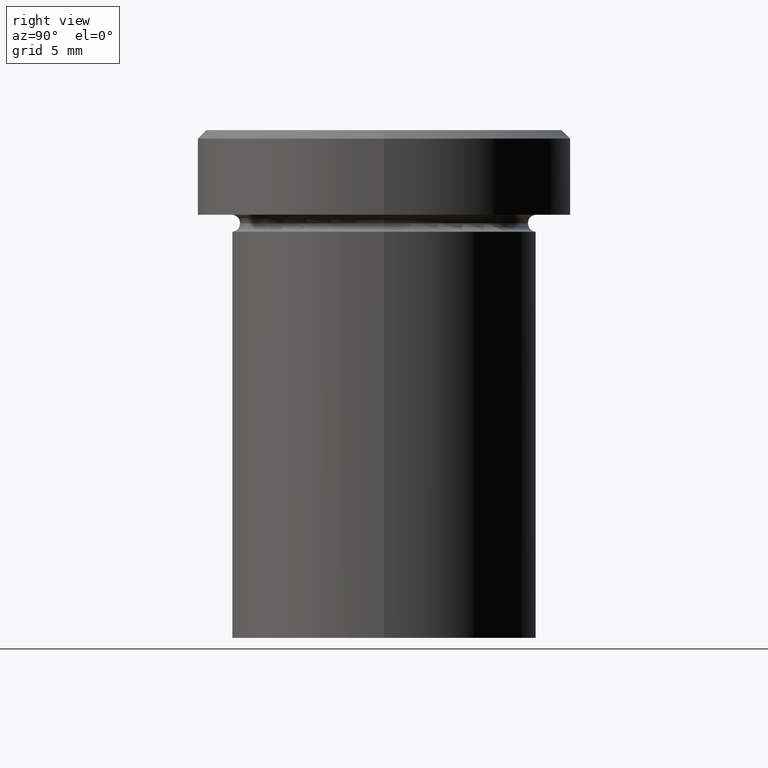
[diagram: clean part render]
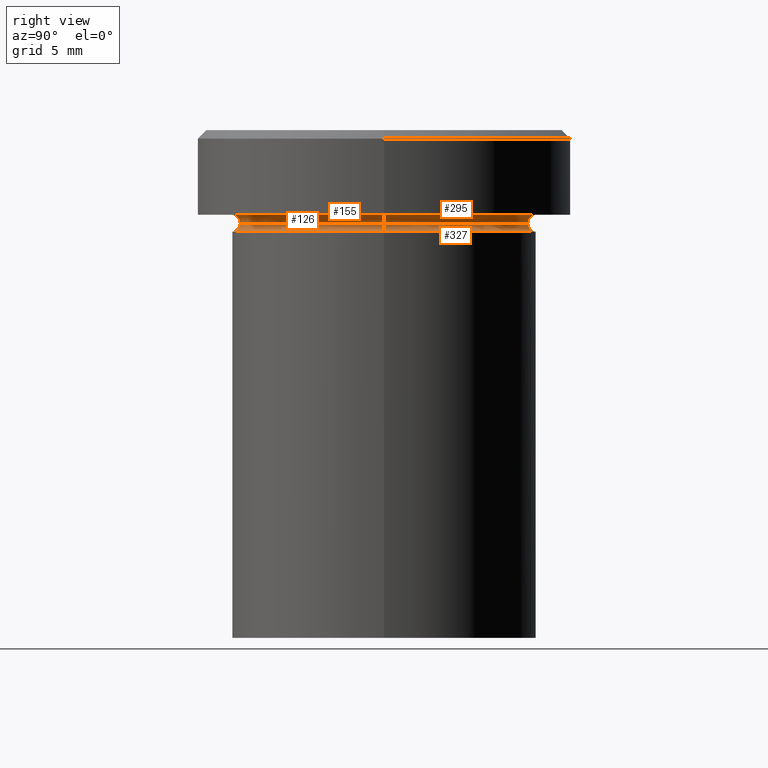
[diagram: same view with one multi-face feature highlighted, each face labeled with its STEP entity id]
A machine part, right view. The highlighted faces form ONE feature: a constant-radius fillet chain: 4 tangent blend faces with common blend radius 0.5 mm. The faces share edges in the B-rep.
Their STEP definitions:
[1] entity #155 (Torus):
#23 = DIRECTION ( 'NONE',  ( 1.000000000000000000, 0.000000000000000000, 0.000000000000000000 ) ) ;
#41 = ORIENTED_EDGE ( 'NONE', *, *, #190, .F. ) ;
#48 = CARTESIAN_POINT ( 'NONE',  ( -8.499999999999998224, 1.071565949253933927E-15, -5.500000000000000000 ) ) ;
#52 = DIRECTION ( 'NONE',  ( 0.000000000000000000, -1.000000000000000000, 0.000000000000000000 ) ) ;
#55 = DIRECTION ( 'NONE',  ( 1.000000000000000000, 0.000000000000000000, 0.000000000000000000 ) ) ;
#56 = DIRECTION ( 'NONE',  ( 0.000000000000000000, 0.000000000000000000, -1.000000000000000000 ) ) ;
#57 = CIRCLE ( 'NONE', #359, 0.5000000000000004441 ) ;
#63 = DIRECTION ( 'NONE',  ( -0.000000000000000000, -0.000000000000000000, 1.000000000000000000 ) ) ;
#64 = CIRCLE ( 'NONE', #401, 9.000000000000000000 ) ;
#94 = CARTESIAN_POINT ( 'NONE',  ( 0.000000000000000000, 0.000000000000000000, -6.000000000000000000 ) ) ;
#96 = DIRECTION ( 'NONE',  ( -0.000000000000000000, -0.000000000000000000, 1.000000000000000000 ) ) ;
#142 = CIRCLE ( 'NONE', #324, 8.499999999999998224 ) ;
#147 = EDGE_CURVE ( 'NONE', #303, #299, #64, .T. ) ;
#152 = CIRCLE ( 'NONE', #204, 0.5000000000000004441 ) ;
#155 = ADVANCED_FACE ( 'NONE', ( #300 ), #364, .F. ) ;
#156 = DIRECTION ( 'NONE',  ( 1.000000000000000000, 0.000000000000000000, 0.000000000000000000 ) ) ;
#161 = DIRECTION ( 'NONE',  ( 1.224646799147353207E-16, 1.000000000000000000, 0.000000000000000000 ) ) ;
#185 = CARTESIAN_POINT ( 'NONE',  ( 9.000000000000000000, 0.000000000000000000, -6.000000000000000000 ) ) ;
#189 = AXIS2_PLACEMENT_3D ( 'NONE', #244, #63, #156 ) ;
#190 = EDGE_CURVE ( 'NONE', #208, #253, #142, .T. ) ;
#204 = AXIS2_PLACEMENT_3D ( 'NONE', #273, #161, #314 ) ;
#207 = EDGE_CURVE ( 'NONE', #253, #299, #57, .T. ) ;
#208 = VERTEX_POINT ( 'NONE', #48 ) ;
#220 = EDGE_LOOP ( 'NONE', ( #41, #337, #227, #240 ) ) ;
#227 = ORIENTED_EDGE ( 'NONE', *, *, #147, .T. ) ;
#228 = CARTESIAN_POINT ( 'NONE',  ( 0.000000000000000000, 0.000000000000000000, -5.500000000000000000 ) ) ;
#240 = ORIENTED_EDGE ( 'NONE', *, *, #207, .F. ) ;
#244 = CARTESIAN_POINT ( 'NONE',  ( 0.000000000000000000, 0.000000000000000000, -5.500000000000000000 ) ) ;
#253 = VERTEX_POINT ( 'NONE', #277 ) ;
#267 = DIRECTION ( 'NONE',  ( -0.000000000000000000, -0.000000000000000000, 1.000000000000000000 ) ) ;
#273 = CARTESIAN_POINT ( 'NONE',  ( -9.000000000000000000, 1.102182119232617714E-15, -5.500000000000000000 ) ) ;
#277 = CARTESIAN_POINT ( 'NONE',  ( 8.499999999999998224, 0.000000000000000000, -5.500000000000000000 ) ) ;
#278 = CARTESIAN_POINT ( 'NONE',  ( -9.000000000000000000, 1.102182119232617714E-15, -6.000000000000000000 ) ) ;
#299 = VERTEX_POINT ( 'NONE', #185 ) ;
#300 = FACE_OUTER_BOUND ( 'NONE', #220, .T. ) ;
#303 = VERTEX_POINT ( 'NONE', #278 ) ;
#314 = DIRECTION ( 'NONE',  ( -1.000000000000000000, 1.224646799147353454E-16, 0.000000000000000000 ) ) ;
#324 = AXIS2_PLACEMENT_3D ( 'NONE', #228, #96, #55 ) ;
#331 = CARTESIAN_POINT ( 'NONE',  ( 9.000000000000000000, 0.000000000000000000, -5.500000000000000000 ) ) ;
#337 = ORIENTED_EDGE ( 'NONE', *, *, #398, .T. ) ;
#359 = AXIS2_PLACEMENT_3D ( 'NONE', #331, #52, #56 ) ;
#364 = TOROIDAL_SURFACE ( 'NONE', #189, 9.000000000000000000, 0.5000000000000000000 ) ;
#398 = EDGE_CURVE ( 'NONE', #208, #303, #152, .T. ) ;
#401 = AXIS2_PLACEMENT_3D ( 'NONE', #94, #267, #23 ) ;
[2] entity #327 (Torus):
#7 = TOROIDAL_SURFACE ( 'NONE', #42, 9.000000000000000000, 0.5000000000000000000 ) ;
#13 = DIRECTION ( 'NONE',  ( -0.000000000000000000, -0.000000000000000000, 1.000000000000000000 ) ) ;
#33 = DIRECTION ( 'NONE',  ( -0.000000000000000000, -0.000000000000000000, 1.000000000000000000 ) ) ;
#42 = AXIS2_PLACEMENT_3D ( 'NONE', #83, #13, #249 ) ;
#45 = FACE_OUTER_BOUND ( 'NONE', #369, .T. ) ;
#48 = CARTESIAN_POINT ( 'NONE',  ( -8.499999999999998224, 1.071565949253933927E-15, -5.500000000000000000 ) ) ;
#52 = DIRECTION ( 'NONE',  ( 0.000000000000000000, -1.000000000000000000, 0.000000000000000000 ) ) ;
#56 = DIRECTION ( 'NONE',  ( 0.000000000000000000, 0.000000000000000000, -1.000000000000000000 ) ) ;
#57 = CIRCLE ( 'NONE', #359, 0.5000000000000004441 ) ;
#65 = ORIENTED_EDGE ( 'NONE', *, *, #259, .T. ) ;
#67 = EDGE_CURVE ( 'NONE', #253, #208, #110, .T. ) ;
#83 = CARTESIAN_POINT ( 'NONE',  ( 0.000000000000000000, 0.000000000000000000, -5.500000000000000000 ) ) ;
#100 = DIRECTION ( 'NONE',  ( 1.000000000000000000, 0.000000000000000000, 0.000000000000000000 ) ) ;
#110 = CIRCLE ( 'NONE', #199, 8.499999999999998224 ) ;
#149 = DIRECTION ( 'NONE',  ( 1.000000000000000000, 0.000000000000000000, 0.000000000000000000 ) ) ;
#152 = CIRCLE ( 'NONE', #204, 0.5000000000000004441 ) ;
#161 = DIRECTION ( 'NONE',  ( 1.224646799147353207E-16, 1.000000000000000000, 0.000000000000000000 ) ) ;
#179 = ORIENTED_EDGE ( 'NONE', *, *, #398, .F. ) ;
#185 = CARTESIAN_POINT ( 'NONE',  ( 9.000000000000000000, 0.000000000000000000, -6.000000000000000000 ) ) ;
#199 = AXIS2_PLACEMENT_3D ( 'NONE', #229, #33, #149 ) ;
#204 = AXIS2_PLACEMENT_3D ( 'NONE', #273, #161, #314 ) ;
#207 = EDGE_CURVE ( 'NONE', #253, #299, #57, .T. ) ;
#208 = VERTEX_POINT ( 'NONE', #48 ) ;
#229 = CARTESIAN_POINT ( 'NONE',  ( 0.000000000000000000, 0.000000000000000000, -5.500000000000000000 ) ) ;
#237 = CARTESIAN_POINT ( 'NONE',  ( 0.000000000000000000, 0.000000000000000000, -6.000000000000000000 ) ) ;
#249 = DIRECTION ( 'NONE',  ( 1.000000000000000000, 0.000000000000000000, 0.000000000000000000 ) ) ;
#250 = ORIENTED_EDGE ( 'NONE', *, *, #207, .T. ) ;
#253 = VERTEX_POINT ( 'NONE', #277 ) ;
#259 = EDGE_CURVE ( 'NONE', #299, #303, #409, .T. ) ;
#264 = AXIS2_PLACEMENT_3D ( 'NONE', #237, #368, #100 ) ;
#273 = CARTESIAN_POINT ( 'NONE',  ( -9.000000000000000000, 1.102182119232617714E-15, -5.500000000000000000 ) ) ;
#277 = CARTESIAN_POINT ( 'NONE',  ( 8.499999999999998224, 0.000000000000000000, -5.500000000000000000 ) ) ;
#278 = CARTESIAN_POINT ( 'NONE',  ( -9.000000000000000000, 1.102182119232617714E-15, -6.000000000000000000 ) ) ;
#299 = VERTEX_POINT ( 'NONE', #185 ) ;
#303 = VERTEX_POINT ( 'NONE', #278 ) ;
#314 = DIRECTION ( 'NONE',  ( -1.000000000000000000, 1.224646799147353454E-16, 0.000000000000000000 ) ) ;
#327 = ADVANCED_FACE ( 'NONE', ( #45 ), #7, .F. ) ;
#331 = CARTESIAN_POINT ( 'NONE',  ( 9.000000000000000000, 0.000000000000000000, -5.500000000000000000 ) ) ;
#359 = AXIS2_PLACEMENT_3D ( 'NONE', #331, #52, #56 ) ;
#368 = DIRECTION ( 'NONE',  ( -0.000000000000000000, -0.000000000000000000, 1.000000000000000000 ) ) ;
#369 = EDGE_LOOP ( 'NONE', ( #179, #396, #250, #65 ) ) ;
#396 = ORIENTED_EDGE ( 'NONE', *, *, #67, .F. ) ;
#398 = EDGE_CURVE ( 'NONE', #208, #303, #152, .T. ) ;
#409 = CIRCLE ( 'NONE', #264, 9.000000000000000000 ) ;
[3] entity #295 (Torus):
#5 = EDGE_LOOP ( 'NONE', ( #279, #346, #209, #164 ) ) ;
#28 = DIRECTION ( 'NONE',  ( -0.000000000000000000, -0.000000000000000000, 1.000000000000000000 ) ) ;
#33 = DIRECTION ( 'NONE',  ( -0.000000000000000000, -0.000000000000000000, 1.000000000000000000 ) ) ;
#48 = CARTESIAN_POINT ( 'NONE',  ( -8.499999999999998224, 1.071565949253933927E-15, -5.500000000000000000 ) ) ;
#66 = CARTESIAN_POINT ( 'NONE',  ( 0.000000000000000000, 0.000000000000000000, -5.000000000000000000 ) ) ;
#67 = EDGE_CURVE ( 'NONE', #253, #208, #110, .T. ) ;
#79 = AXIS2_PLACEMENT_3D ( 'NONE', #361, #320, #97 ) ;
#97 = DIRECTION ( 'NONE',  ( 0.000000000000000000, 0.000000000000000000, -1.000000000000000000 ) ) ;
#106 = DIRECTION ( 'NONE',  ( -1.000000000000000000, -1.224646799147353454E-16, 0.000000000000000000 ) ) ;
#107 = FACE_OUTER_BOUND ( 'NONE', #5, .T. ) ;
#110 = CIRCLE ( 'NONE', #199, 8.499999999999998224 ) ;
#127 = CARTESIAN_POINT ( 'NONE',  ( 9.000000000000000000, 1.102182119232617714E-15, -5.500000000000000000 ) ) ;
#132 = CIRCLE ( 'NONE', #292, 9.000000000000000000 ) ;
#149 = DIRECTION ( 'NONE',  ( 1.000000000000000000, 0.000000000000000000, 0.000000000000000000 ) ) ;
#163 = DIRECTION ( 'NONE',  ( -1.000000000000000000, 0.000000000000000000, 0.000000000000000000 ) ) ;
#164 = ORIENTED_EDGE ( 'NONE', *, *, #280, .F. ) ;
#168 = CARTESIAN_POINT ( 'NONE',  ( -9.000000000000000000, 0.000000000000000000, -4.999999999999999112 ) ) ;
#178 = DIRECTION ( 'NONE',  ( -1.000000000000000000, 0.000000000000000000, 0.000000000000000000 ) ) ;
#183 = TOROIDAL_SURFACE ( 'NONE', #343, 9.000000000000000000, 0.5000000000000000000 ) ;
#199 = AXIS2_PLACEMENT_3D ( 'NONE', #229, #33, #149 ) ;
#202 = EDGE_CURVE ( 'NONE', #208, #321, #241, .T. ) ;
#208 = VERTEX_POINT ( 'NONE', #48 ) ;
#209 = ORIENTED_EDGE ( 'NONE', *, *, #202, .T. ) ;
#211 = AXIS2_PLACEMENT_3D ( 'NONE', #127, #366, #106 ) ;
#229 = CARTESIAN_POINT ( 'NONE',  ( 0.000000000000000000, 0.000000000000000000, -5.500000000000000000 ) ) ;
#241 = CIRCLE ( 'NONE', #79, 0.5000000000000004441 ) ;
#253 = VERTEX_POINT ( 'NONE', #277 ) ;
#255 = CARTESIAN_POINT ( 'NONE',  ( 9.000000000000000000, 1.102182119232617714E-15, -4.999999999999999112 ) ) ;
#263 = EDGE_CURVE ( 'NONE', #253, #367, #298, .T. ) ;
#277 = CARTESIAN_POINT ( 'NONE',  ( 8.499999999999998224, 0.000000000000000000, -5.500000000000000000 ) ) ;
#279 = ORIENTED_EDGE ( 'NONE', *, *, #263, .F. ) ;
#280 = EDGE_CURVE ( 'NONE', #367, #321, #132, .T. ) ;
#292 = AXIS2_PLACEMENT_3D ( 'NONE', #66, #28, #163 ) ;
#295 = ADVANCED_FACE ( 'NONE', ( #107 ), #183, .F. ) ;
#298 = CIRCLE ( 'NONE', #211, 0.5000000000000004441 ) ;
#320 = DIRECTION ( 'NONE',  ( -0.000000000000000000, -1.000000000000000000, -0.000000000000000000 ) ) ;
#321 = VERTEX_POINT ( 'NONE', #168 ) ;
#340 = DIRECTION ( 'NONE',  ( 0.000000000000000000, 0.000000000000000000, -1.000000000000000000 ) ) ;
#343 = AXIS2_PLACEMENT_3D ( 'NONE', #406, #340, #178 ) ;
#346 = ORIENTED_EDGE ( 'NONE', *, *, #67, .T. ) ;
#361 = CARTESIAN_POINT ( 'NONE',  ( -9.000000000000000000, 0.000000000000000000, -5.500000000000000000 ) ) ;
#366 = DIRECTION ( 'NONE',  ( -1.224646799147353207E-16, 1.000000000000000000, 0.000000000000000000 ) ) ;
#367 = VERTEX_POINT ( 'NONE', #255 ) ;
#406 = CARTESIAN_POINT ( 'NONE',  ( 0.000000000000000000, 0.000000000000000000, -5.500000000000000000 ) ) ;
[4] entity #126 (Torus):
#24 = AXIS2_PLACEMENT_3D ( 'NONE', #198, #293, #288 ) ;
#48 = CARTESIAN_POINT ( 'NONE',  ( -8.499999999999998224, 1.071565949253933927E-15, -5.500000000000000000 ) ) ;
#55 = DIRECTION ( 'NONE',  ( 1.000000000000000000, 0.000000000000000000, 0.000000000000000000 ) ) ;
#79 = AXIS2_PLACEMENT_3D ( 'NONE', #361, #320, #97 ) ;
#92 = EDGE_CURVE ( 'NONE', #321, #367, #159, .T. ) ;
#96 = DIRECTION ( 'NONE',  ( -0.000000000000000000, -0.000000000000000000, 1.000000000000000000 ) ) ;
#97 = DIRECTION ( 'NONE',  ( 0.000000000000000000, 0.000000000000000000, -1.000000000000000000 ) ) ;
#98 = ORIENTED_EDGE ( 'NONE', *, *, #202, .F. ) ;
#106 = DIRECTION ( 'NONE',  ( -1.000000000000000000, -1.224646799147353454E-16, 0.000000000000000000 ) ) ;
#126 = ADVANCED_FACE ( 'NONE', ( #172 ), #203, .F. ) ;
#127 = CARTESIAN_POINT ( 'NONE',  ( 9.000000000000000000, 1.102182119232617714E-15, -5.500000000000000000 ) ) ;
#142 = CIRCLE ( 'NONE', #324, 8.499999999999998224 ) ;
#153 = CARTESIAN_POINT ( 'NONE',  ( 0.000000000000000000, 0.000000000000000000, -5.000000000000000000 ) ) ;
#159 = CIRCLE ( 'NONE', #226, 9.000000000000000000 ) ;
#168 = CARTESIAN_POINT ( 'NONE',  ( -9.000000000000000000, 0.000000000000000000, -4.999999999999999112 ) ) ;
#172 = FACE_OUTER_BOUND ( 'NONE', #334, .T. ) ;
#187 = DIRECTION ( 'NONE',  ( -0.000000000000000000, -0.000000000000000000, 1.000000000000000000 ) ) ;
#190 = EDGE_CURVE ( 'NONE', #208, #253, #142, .T. ) ;
#192 = ORIENTED_EDGE ( 'NONE', *, *, #190, .T. ) ;
#198 = CARTESIAN_POINT ( 'NONE',  ( 0.000000000000000000, 0.000000000000000000, -5.500000000000000000 ) ) ;
#202 = EDGE_CURVE ( 'NONE', #208, #321, #241, .T. ) ;
#203 = TOROIDAL_SURFACE ( 'NONE', #24, 9.000000000000000000, 0.5000000000000000000 ) ;
#208 = VERTEX_POINT ( 'NONE', #48 ) ;
#211 = AXIS2_PLACEMENT_3D ( 'NONE', #127, #366, #106 ) ;
#226 = AXIS2_PLACEMENT_3D ( 'NONE', #153, #187, #374 ) ;
#228 = CARTESIAN_POINT ( 'NONE',  ( 0.000000000000000000, 0.000000000000000000, -5.500000000000000000 ) ) ;
#241 = CIRCLE ( 'NONE', #79, 0.5000000000000004441 ) ;
#253 = VERTEX_POINT ( 'NONE', #277 ) ;
#255 = CARTESIAN_POINT ( 'NONE',  ( 9.000000000000000000, 1.102182119232617714E-15, -4.999999999999999112 ) ) ;
#263 = EDGE_CURVE ( 'NONE', #253, #367, #298, .T. ) ;
#277 = CARTESIAN_POINT ( 'NONE',  ( 8.499999999999998224, 0.000000000000000000, -5.500000000000000000 ) ) ;
#288 = DIRECTION ( 'NONE',  ( -1.000000000000000000, 0.000000000000000000, 0.000000000000000000 ) ) ;
#293 = DIRECTION ( 'NONE',  ( 0.000000000000000000, 0.000000000000000000, -1.000000000000000000 ) ) ;
#298 = CIRCLE ( 'NONE', #211, 0.5000000000000004441 ) ;
#320 = DIRECTION ( 'NONE',  ( -0.000000000000000000, -1.000000000000000000, -0.000000000000000000 ) ) ;
#321 = VERTEX_POINT ( 'NONE', #168 ) ;
#324 = AXIS2_PLACEMENT_3D ( 'NONE', #228, #96, #55 ) ;
#334 = EDGE_LOOP ( 'NONE', ( #192, #384, #405, #98 ) ) ;
#361 = CARTESIAN_POINT ( 'NONE',  ( -9.000000000000000000, 0.000000000000000000, -5.500000000000000000 ) ) ;
#366 = DIRECTION ( 'NONE',  ( -1.224646799147353207E-16, 1.000000000000000000, 0.000000000000000000 ) ) ;
#367 = VERTEX_POINT ( 'NONE', #255 ) ;
#374 = DIRECTION ( 'NONE',  ( -1.000000000000000000, 0.000000000000000000, 0.000000000000000000 ) ) ;
#384 = ORIENTED_EDGE ( 'NONE', *, *, #263, .T. ) ;
#405 = ORIENTED_EDGE ( 'NONE', *, *, #92, .F. ) ;